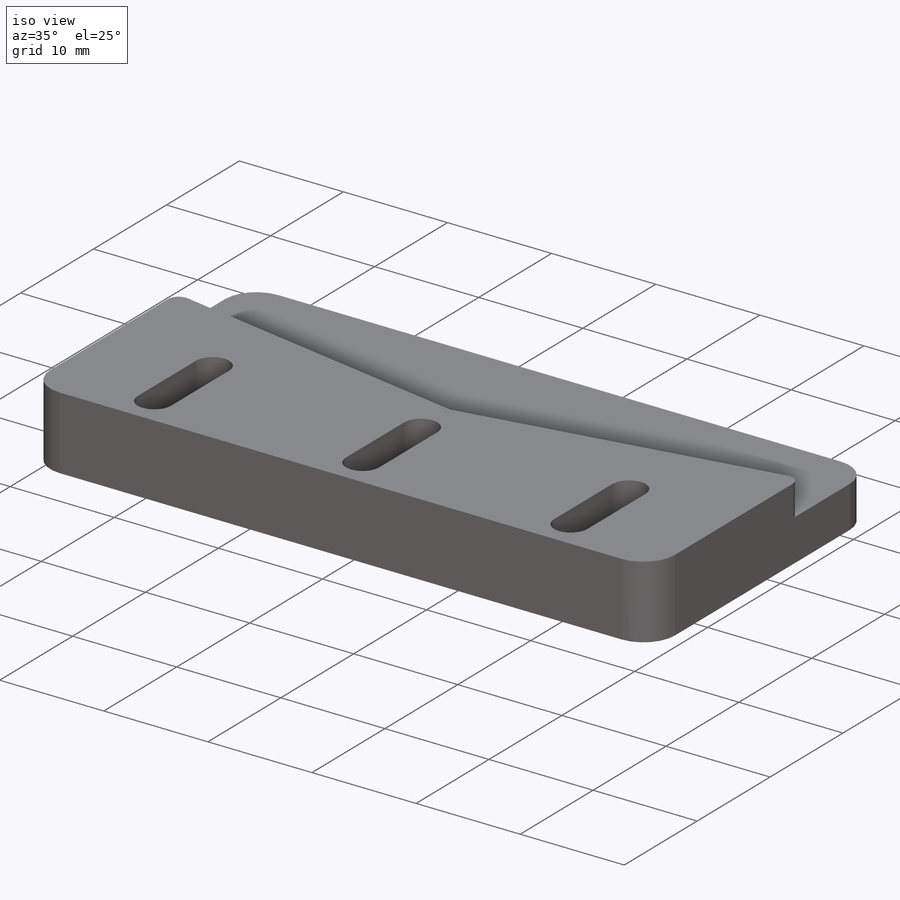
[diagram: iso view]
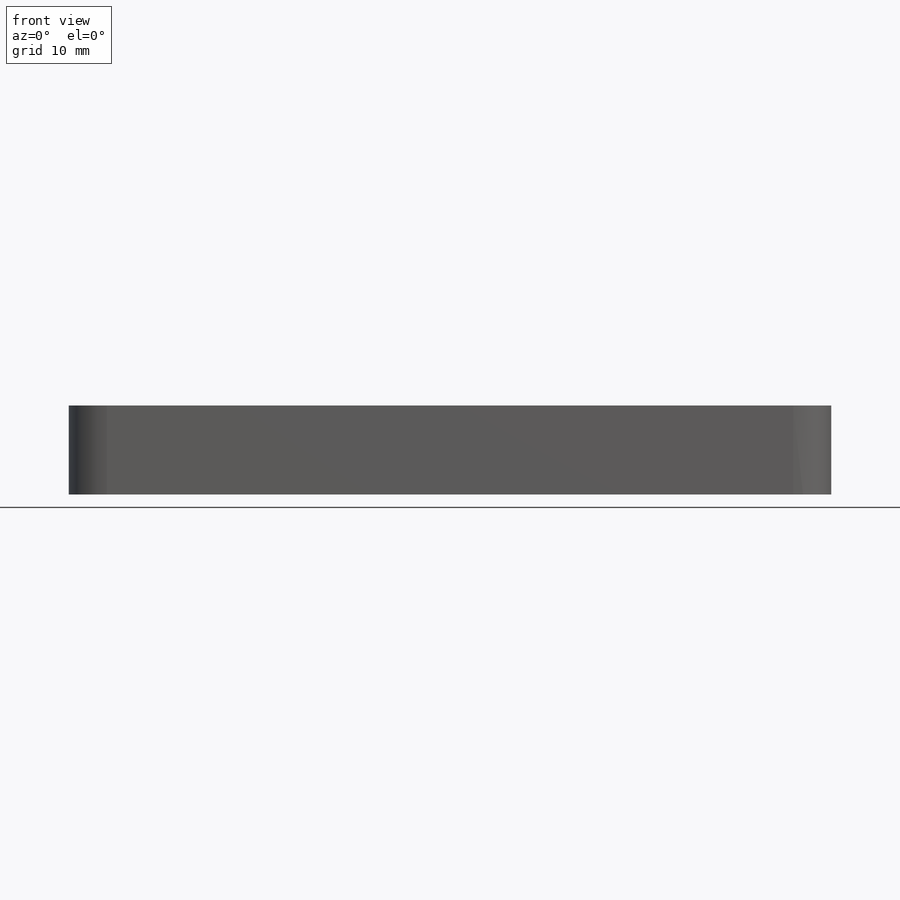
[diagram: front view]
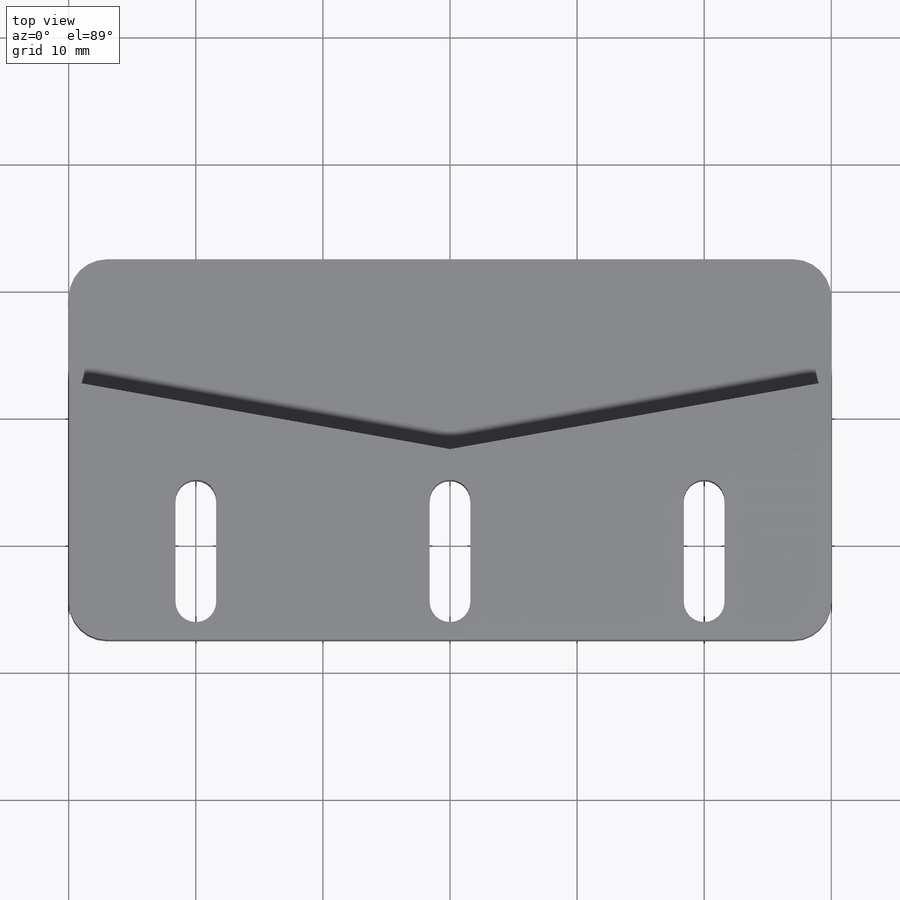
[diagram: top view]
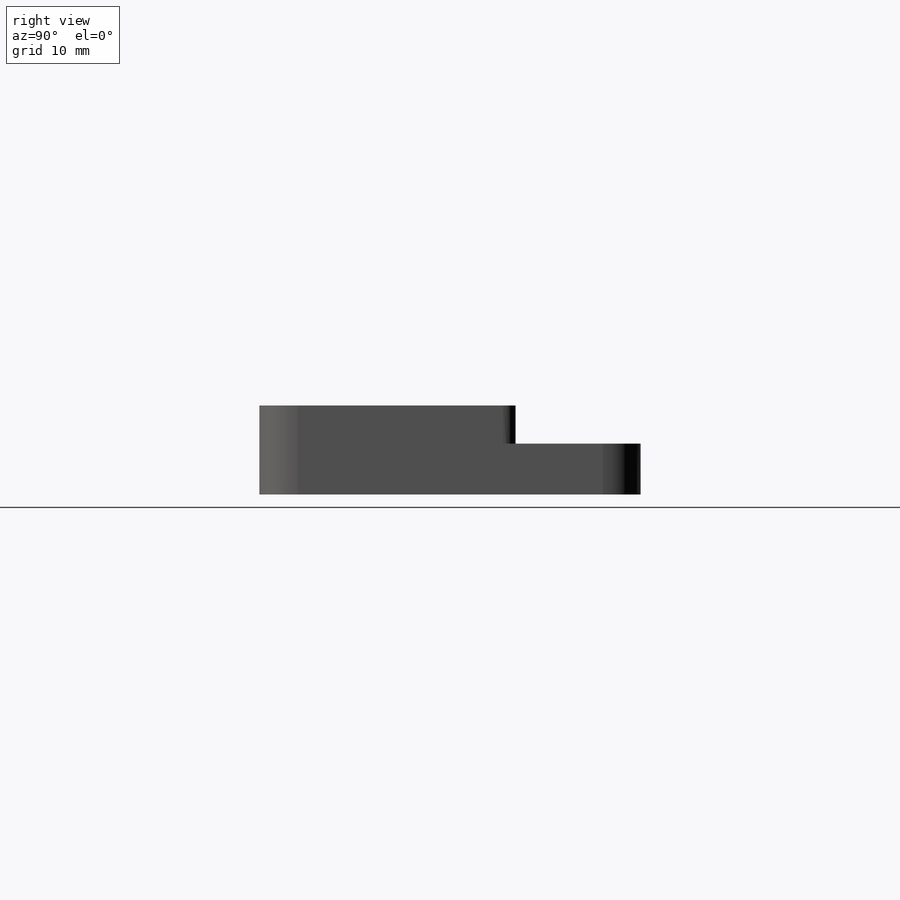
[diagram: right view]
SOLIDWORKS PART (.sldprt)
format: sldprt  version: not decoded by parser v0  size: 267,776 bytes
history: native  units: mm
features: sketch x5, extrude x3, material x1, fillet x1, cut_extrude x1 (+12 scaffold rows collapsed)
feature tree (23):
  scaffold x12  (default folders/planes/origin — collapsed)
  material  "Material <not specified>"
  sketch  "Sketch1"  dims[c1.D1=15.0mm c1.D2=60.0mm c2.D1=15.0mm]
  sketch  "Sketch2"  dims[D1=83.0mm D2=1.0mm]
  extrude  "Boss-Extrude1"  Depth=3mm
  sketch  "Sketch4"  dims[D1=30.0mm]
  extrude  "Boss-Extrude2"  Depth=4mm
  fillet  "Fillet1"  Radius=3mm
  sketch  "Sketch5"  dims[D1=3.2mm D2=3.0mm D3=8.0mm D4=2.0]
  cut_extrude  "Cut-Extrude1"  [1 undecoded]
  sketch  "Sketch6"  dims[D1=0.0mm D2=0.0mm D3=0.0mm D4=0.0mm]
  extrude  "Boss-Extrude3"  [1 undecoded]
decode coverage: 8 of 10 modeling features carry decoded parameters
note: 2 parameter values undecoded
note: suppression state not decoded; provenance and decode notes live in map.json
